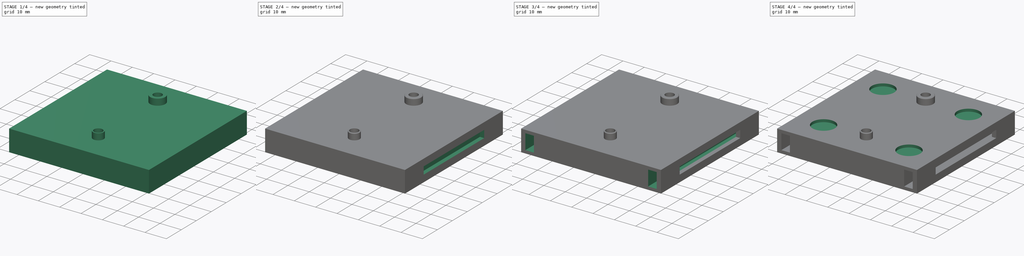
[diagram: build sequence overview — one tinted view per stage of 4, left to right]
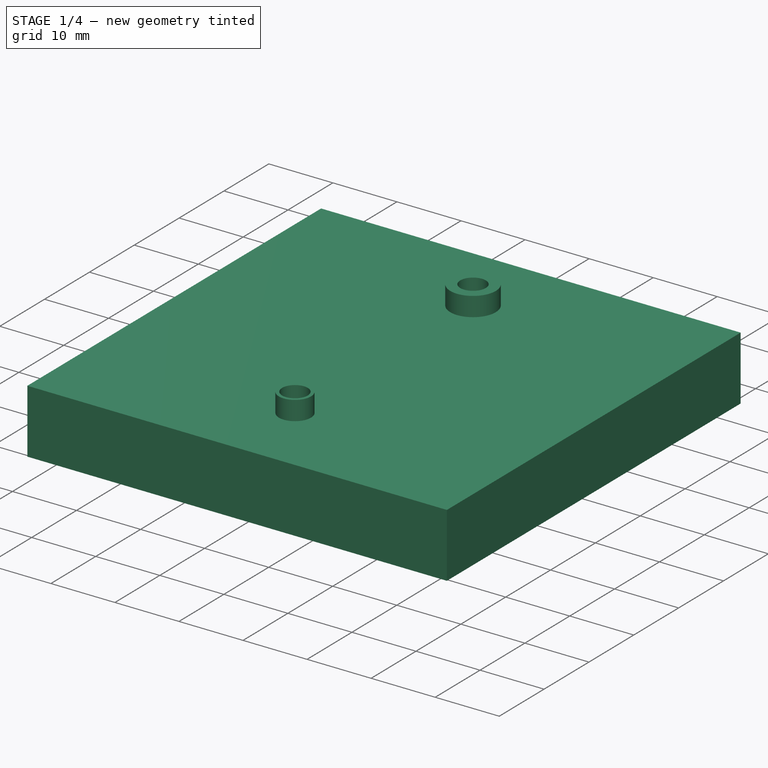
[diagram: stage 1 of 4 — iso view after this stage's code; geometry added in this stage tinted green]
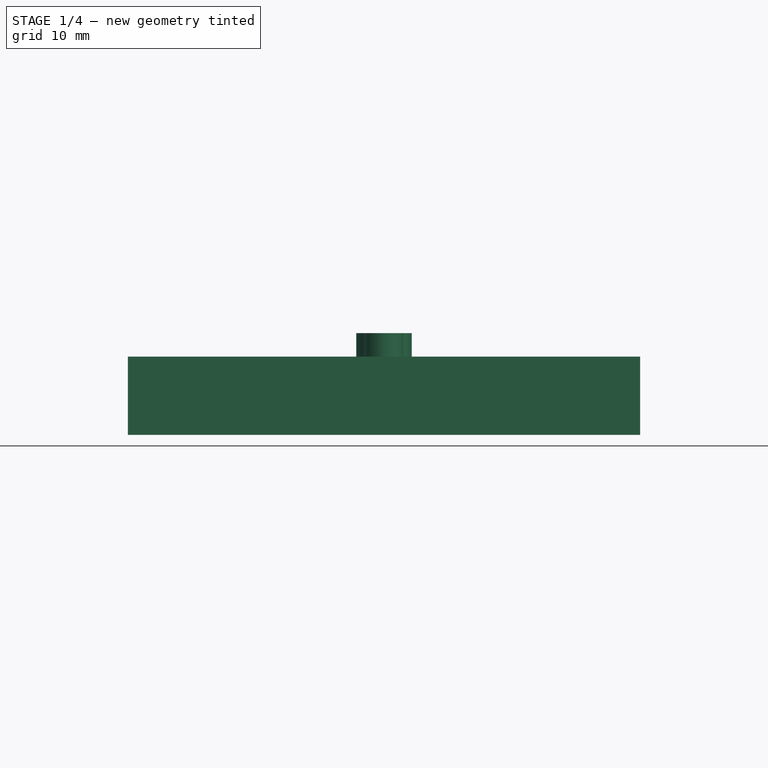
[diagram: stage 1 of 4 — front view after this stage's code; geometry added in this stage tinted green]
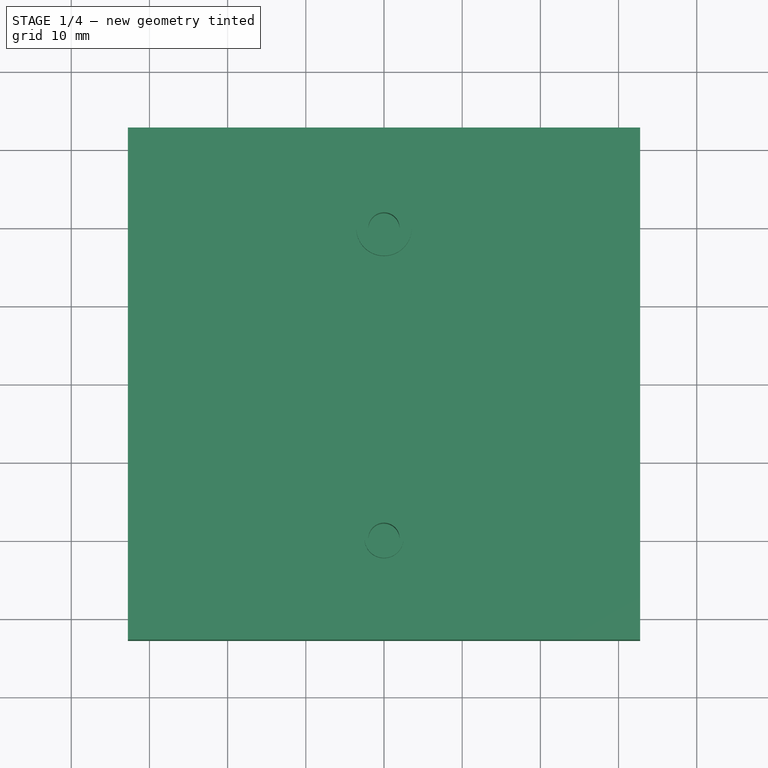
[diagram: stage 1 of 4 — top view after this stage's code; geometry added in this stage tinted green]
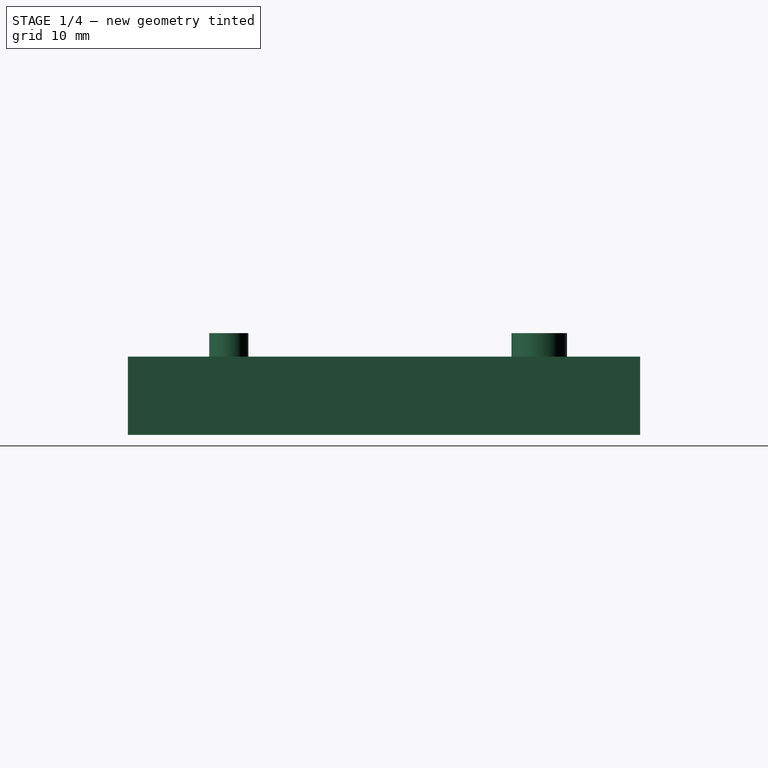
[diagram: stage 1 of 4 — right view after this stage's code; geometry added in this stage tinted green]
FCSTD DOCUMENT  (FreeCAD 0.20R29410 (Git))
Label: AdjBaseMountPlateRevD
License: All rights reserved
LicenseURL: http://en.wikipedia.org/wiki/All_rights_reserved
objects: Sketcher::SketchObject×10, PartDesign::Pocket×8, PartDesign::Plane×3, PartDesign::Pad×2, PartDesign::Chamfer×2, PartDesign::Body×1
note: 38 computed .brp shape members not serialized (recipe doc carries the construction recipe); baked Part::Feature solids carry a one-line shape summary decoded from their .brp

FEATURE [Sketcher::SketchObject] Sketch
  FullyConstrained = true
  MapMode = 5
  Support = -> [XY_Plane]
  sketch-geometry (4):
    g0: LineSegment StartX=-32.75 StartY=32.75 StartZ=0 EndX=32.75 EndY=32.75 EndZ=0
    g1: LineSegment StartX=32.75 StartY=32.75 StartZ=0 EndX=32.75 EndY=-32.75 EndZ=0
    g2: LineSegment StartX=32.75 StartY=-32.75 StartZ=0 EndX=-32.75 EndY=-32.75 EndZ=0
    g3: LineSegment StartX=-32.75 StartY=-32.75 StartZ=0 EndX=-32.75 EndY=32.75 EndZ=0
  constraints (11):
    c: Coincident(g0,g1)
    c: Coincident(g1,g2)
    c: Coincident(g2,g3)
    c: Coincident(g3,g0)
    c: Horizontal(g0)
    c: Horizontal(g2)
    c: Vertical(g1)
    c: Vertical(g3)
    c: Equal(g1,g0)
    c: DistanceX(g0,g0) = 65.5
    c: Symmetric(g1,g0,g-1)
FEATURE [PartDesign::Pad] Pad
  Direction = (0,0,1)
  Length = 10
  Length2 = 10
  Profile = -> Sketch
  ReferenceAxis = -> Sketch [N_Axis]
  Type = 0
FEATURE [Sketcher::SketchObject] Sketch001
  ExternalGeometry = -> [Pad]
  FullyConstrained = true
  MapMode = 5
  Placement = pos=(0,0,10) rot=(0,0,1;0rad)
  Support = -> [Pad]
  sketch-geometry (2):
    g0: Circle CenterX=0 CenterY=19.85 CenterZ=0 NormalX=0 NormalY=0 NormalZ=1 AngleXU=0 Radius=3.55
    g1: Circle CenterX=0 CenterY=-19.85 CenterZ=0 NormalX=0 NormalY=0 NormalZ=1 AngleXU=0 Radius=2.5
  constraints (6):
    c: PointOnObject(g0,g-2)
    c: PointOnObject(g1,g-2)
    c: DistanceY(g1,g-3) = 52.6
    c: DistanceY(g-3,g0) = -12.9
    c: Diameter(g0) = 7.1
    c: Diameter(g1) = 5
FEATURE [PartDesign::Pad] Pad001  label="PadMountsTwo"
  BaseFeature = -> Pad
  Direction = (0,0,1)
  Length = 3
  Length2 = 10
  Profile = -> Sketch001
  ReferenceAxis = -> Sketch001 [N_Axis]
  Type = 0
FEATURE [Sketcher::SketchObject] Sketch002
  ExternalGeometry = -> [Pad001]
  FullyConstrained = true
  MapMode = 5
  Placement = pos=(0,0,13) rot=(0,0,1;0rad)
  Support = -> [Pad001]
  sketch-geometry (2):
    g0: Circle CenterX=0 CenterY=19.85 CenterZ=0 NormalX=0 NormalY=0 NormalZ=1 AngleXU=0 Radius=2
    g1: Circle CenterX=0 CenterY=-19.85 CenterZ=0 NormalX=0 NormalY=0 NormalZ=1 AngleXU=0 Radius=2
  constraints (4):
    c: Coincident(g0,g-3)
    c: Coincident(g1,g-4)
    c: Equal(g0,g1)
    c: Diameter(g0) = 4
FEATURE [PartDesign::Pocket] Pocket  label="4mmTwoCenterBoltHoles"
  BaseFeature = -> Pad001
  Direction = (0,0,-1)
  Length = 8
  Length2 = 5
  Profile = -> Sketch002
  ReferenceAxis = -> Sketch002 [N_Axis]
  Type = 0
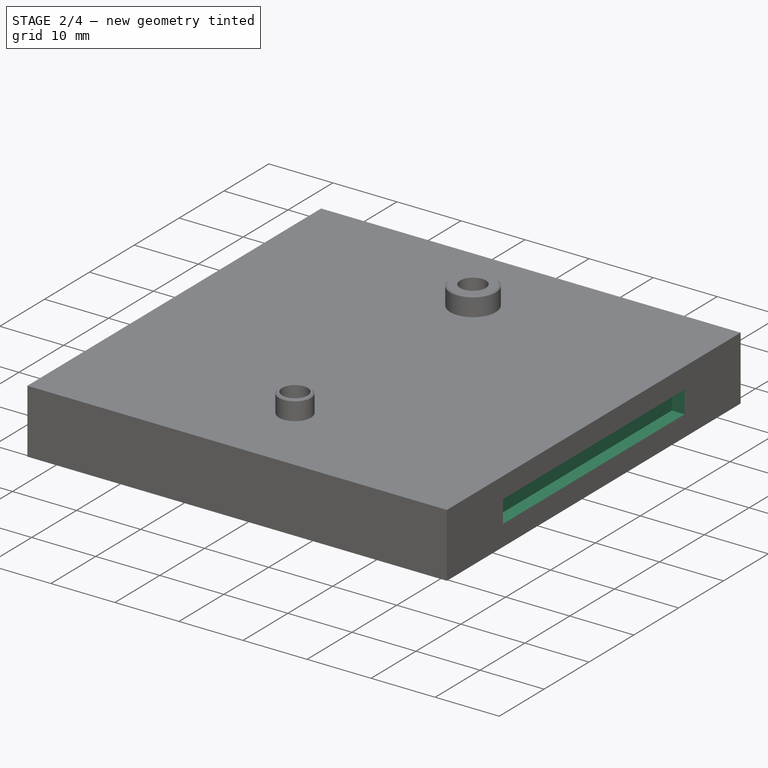
[diagram: stage 2 of 4 — iso view after this stage's code; geometry added in this stage tinted green]
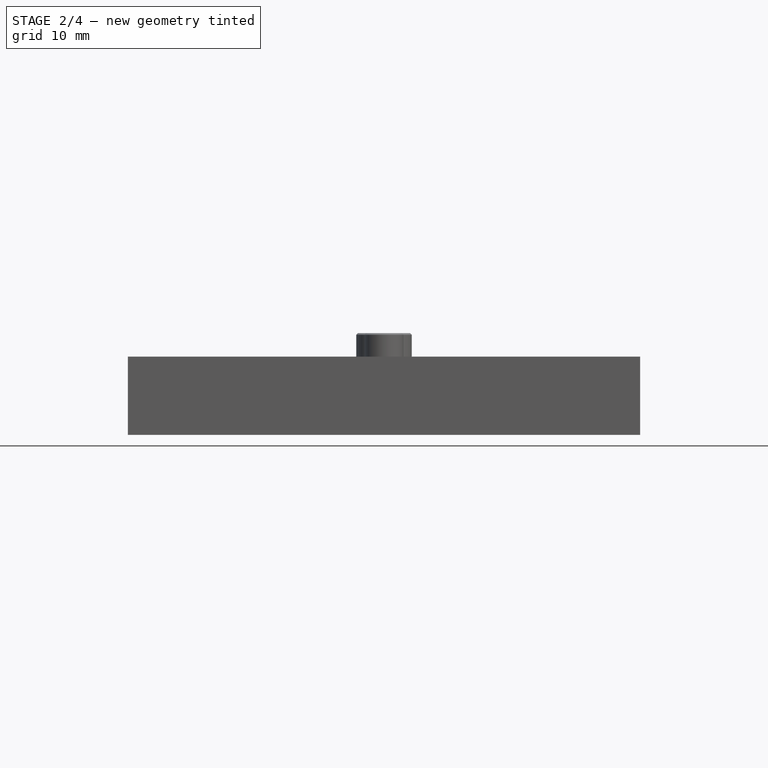
[diagram: stage 2 of 4 — front view after this stage's code; geometry added in this stage tinted green]
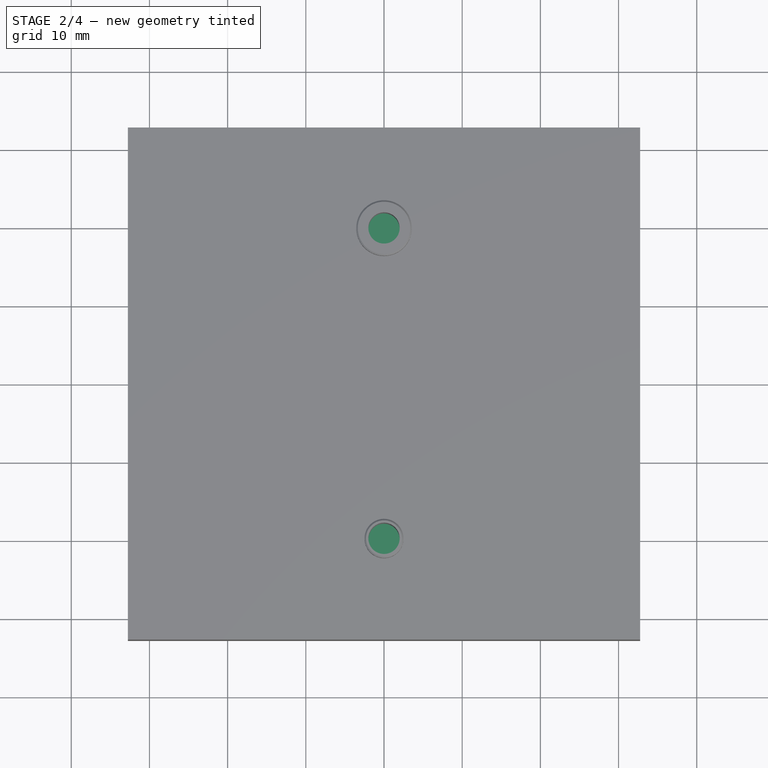
[diagram: stage 2 of 4 — top view after this stage's code; geometry added in this stage tinted green]
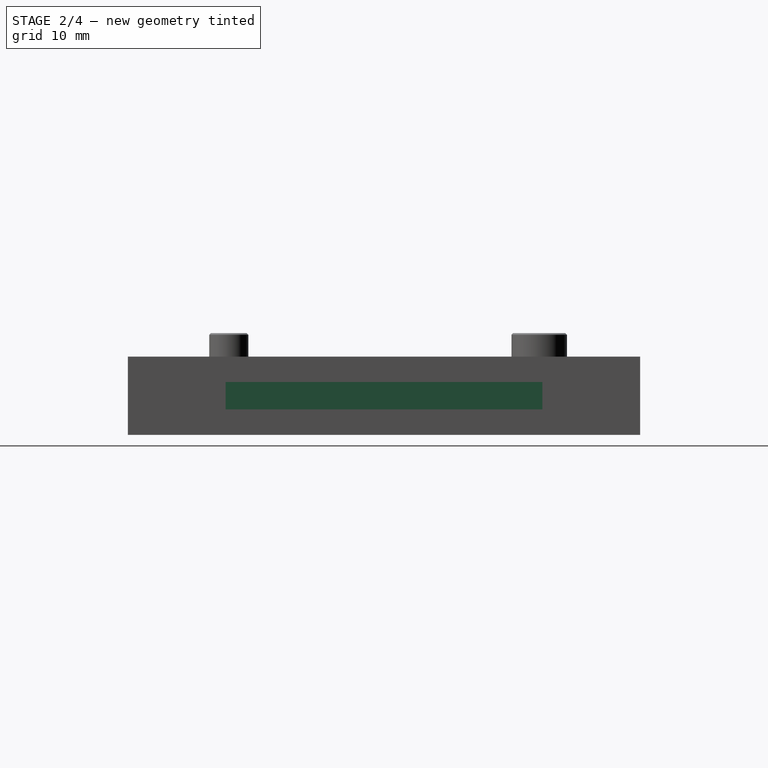
[diagram: stage 2 of 4 — right view after this stage's code; geometry added in this stage tinted green]
FEATURE [PartDesign::Chamfer] Chamfer
  Angle = 45
  Base = -> Pocket [Edge18,Edge16]
  BaseFeature = -> Pocket
  ChamferType = 0
  FlipDirection = false
  Size = 0.2
  Size2 = 1
  SupportTransform = false
  UseAllEdges = false
FEATURE [PartDesign::Plane] DatumPlane
  AttachmentOffset = pos=(0,0,-5) rot=(0,0,1;0rad)
  Length = 78.6
  MapMode = 5
  Placement = pos=(0,0,5) rot=(0,0,1;0rad)
  ResizeMode = 0
  Support = -> [Chamfer]
  Width = 78.6
FEATURE [Sketcher::SketchObject] Sketch003  label="NutDia8.43"
  ExternalGeometry = -> [Chamfer]
  FullyConstrained = true
  MapMode = 5
  Placement = pos=(0,0,5) rot=(0,0,1;0rad)
  Support = -> [DatumPlane]
  sketch-geometry (14):
    g0: LineSegment StartX=-3.6503 StartY=17.7425 StartZ=0 EndX=0 EndY=15.635 EndZ=0
    g1: LineSegment StartX=0 StartY=15.635 StartZ=0 EndX=3.6503 EndY=17.7425 EndZ=0
    g2: LineSegment StartX=3.6503 StartY=17.7425 StartZ=0 EndX=3.6503 EndY=21.9575 EndZ=0
    g3: LineSegment StartX=3.6503 StartY=21.9575 StartZ=0 EndX=1.94849e-11 EndY=24.065 EndZ=0
    g4: LineSegment StartX=1.94849e-11 StartY=24.065 StartZ=0 EndX=-3.6503 EndY=21.9575 EndZ=0
    g5: LineSegment StartX=-3.6503 StartY=21.9575 StartZ=0 EndX=-3.6503 EndY=17.7425 EndZ=0
    g6: Circle CenterX=0 CenterY=19.85 CenterZ=0 NormalX=0 NormalY=0 NormalZ=1 AngleXU=0 Radius=4.215
    g7: LineSegment StartX=-3.6503 StartY=-21.9575 StartZ=0 EndX=0 EndY=-24.065 EndZ=0
    g8: LineSegment StartX=0 StartY=-24.065 StartZ=0 EndX=3.6503 EndY=-21.9575 EndZ=0
    g9: LineSegment StartX=3.6503 StartY=-21.9575 StartZ=0 EndX=3.6503 EndY=-17.7425 EndZ=0
    g10: LineSegment StartX=3.6503 StartY=-17.7425 StartZ=0 EndX=1.94857e-11 EndY=-15.635 EndZ=0
    g11: LineSegment StartX=1.94857e-11 StartY=-15.635 StartZ=0 EndX=-3.6503 EndY=-17.7425 EndZ=0
    g12: LineSegment StartX=-3.6503 StartY=-17.7425 StartZ=0 EndX=-3.6503 EndY=-21.9575 EndZ=0
    g13: Circle CenterX=0 CenterY=-19.85 CenterZ=0 NormalX=0 NormalY=0 NormalZ=1 AngleXU=0 Radius=4.215
  constraints (32):
    c: Coincident(g0,g1)
    c: Coincident(g1,g2)
    c: Coincident(g2,g3)
    c: Coincident(g3,g4)
    c: Coincident(g4,g5)
    c: Coincident(g5,g0)
    c: Equal(g0, g1-g5) x5
    c: PointOnObject(g0,g6)
    c: PointOnObject(g1,g6)
    c: PointOnObject(g2,g6)
    c: PointOnObject(g3,g6)
    c: PointOnObject(g4,g6)
    c: PointOnObject(g5,g6)
    c: Coincident(g6,g-3)
    c: Coincident(g7,g8)
    c: Coincident(g8,g9)
    c: Coincident(g9,g10)
    c: Coincident(g10,g11)
    c: Coincident(g11,g12)
    c: Coincident(g12,g7)
    c: Equal(g7, g8-g12) x5
    c: PointOnObject(g7,g13)
    c: PointOnObject(g8,g13)
    c: PointOnObject(g9,g13)
    c: PointOnObject(g10,g13)
    c: PointOnObject(g11,g13)
    c: PointOnObject(g12,g13)
    c: Coincident(g13,g-4)
    c: Vertical(g7,g13)
    c: Vertical(g0,g6)
    c: Equal(g6,g13)
    c: Diameter(g6) = 8.43
FEATURE [PartDesign::Pocket] Pocket001  label="NutHoles2.5"
  BaseFeature = -> Chamfer
  Direction = (0,0,-1)
  Length = 2.5
  Length2 = 5
  Profile = -> Sketch003
  ReferenceAxis = -> Sketch003 [N_Axis]
  Type = 0
FEATURE [Sketcher::SketchObject] Sketch004
  FullyConstrained = true
  MapMode = 5
  Placement = pos=(32.75,0,0) rot=(0.57735,0.57735,0.57735;2.0944rad)
  Support = -> [Pocket001]
  sketch-geometry (4):
    g0: LineSegment StartX=-20.25 StartY=6.75 StartZ=0 EndX=20.25 EndY=6.75 EndZ=0
    g1: LineSegment StartX=20.25 StartY=6.75 StartZ=0 EndX=20.25 EndY=3.25 EndZ=0
    g2: LineSegment StartX=20.25 StartY=3.25 StartZ=0 EndX=-20.25 EndY=3.25 EndZ=0
    g3: LineSegment StartX=-20.25 StartY=3.25 StartZ=0 EndX=-20.25 EndY=6.75 EndZ=0
  constraints (11):
    c: Coincident(g0,g1)
    c: Coincident(g1,g2)
    c: Coincident(g2,g3)
    c: Coincident(g3,g0)
    c: Horizontal(g0)
    c: Vertical(g1)
    c: Vertical(g3)
    c: DistanceX(g0,g0) = 40.5
    c: DistanceY(g1,g1) = 3.5
    c: Symmetric(g1,g2,g-2)
    c: DistanceY(g-1,g1) = 3.25
FEATURE [PartDesign::Pocket] Pocket002  label="RightSideAccess"
  BaseFeature = -> Pocket001
  Direction = (-1,0,0)
  Length = 2
  Length2 = 5
  Profile = -> Sketch004
  ReferenceAxis = -> Sketch004 [N_Axis]
  Type = 0
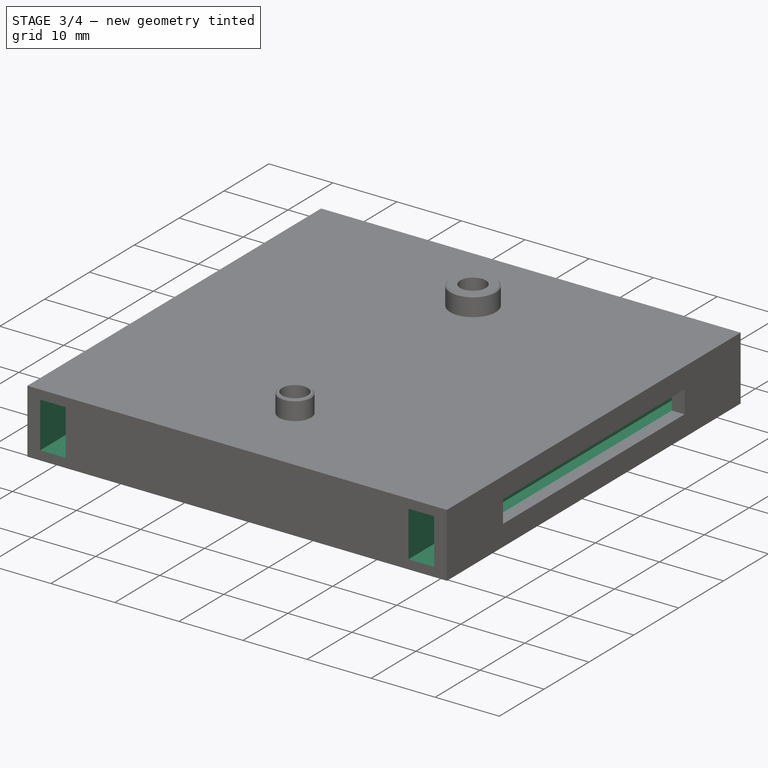
[diagram: stage 3 of 4 — iso view after this stage's code; geometry added in this stage tinted green]
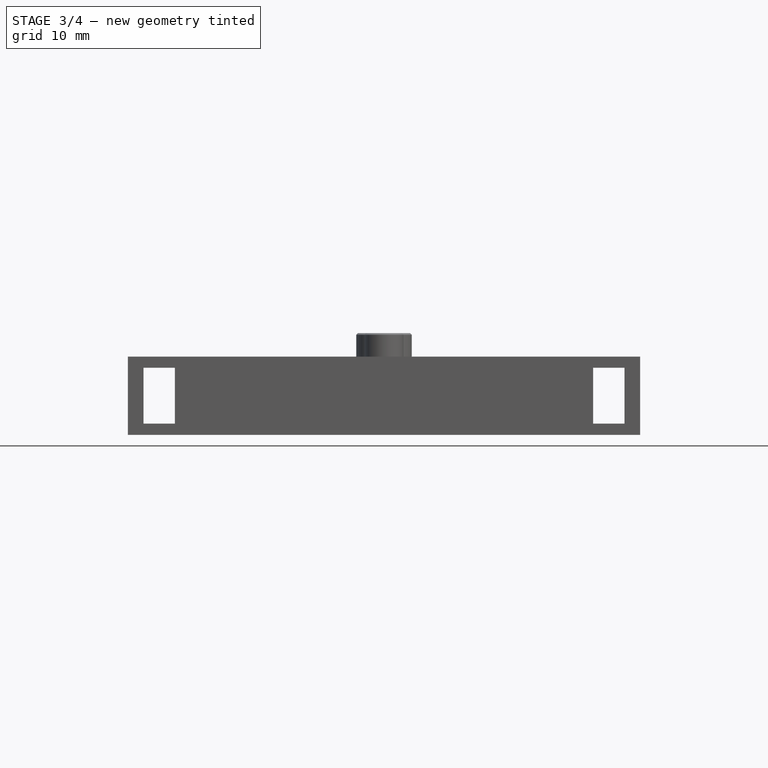
[diagram: stage 3 of 4 — front view after this stage's code; geometry added in this stage tinted green]
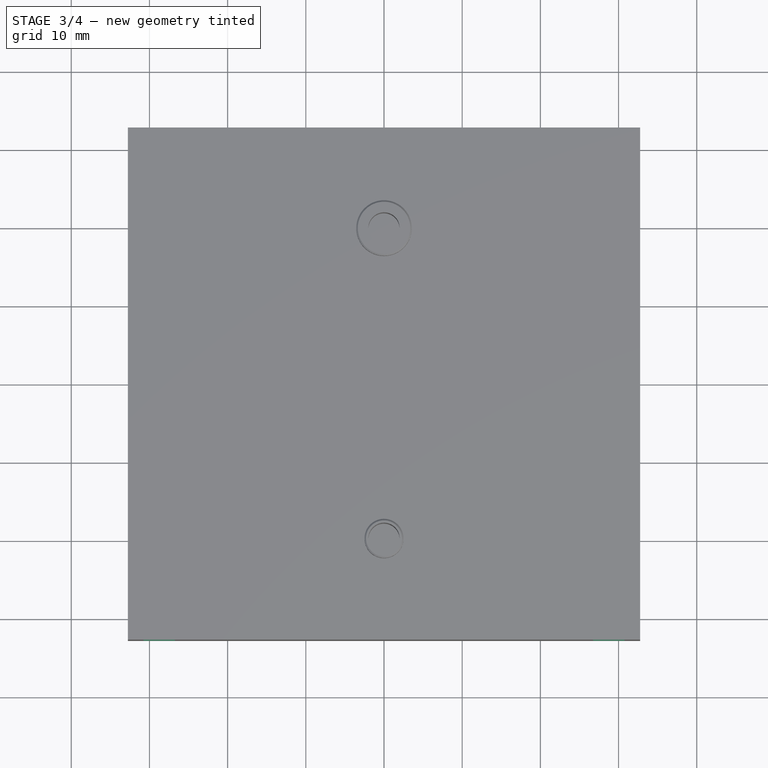
[diagram: stage 3 of 4 — top view after this stage's code; geometry added in this stage tinted green]
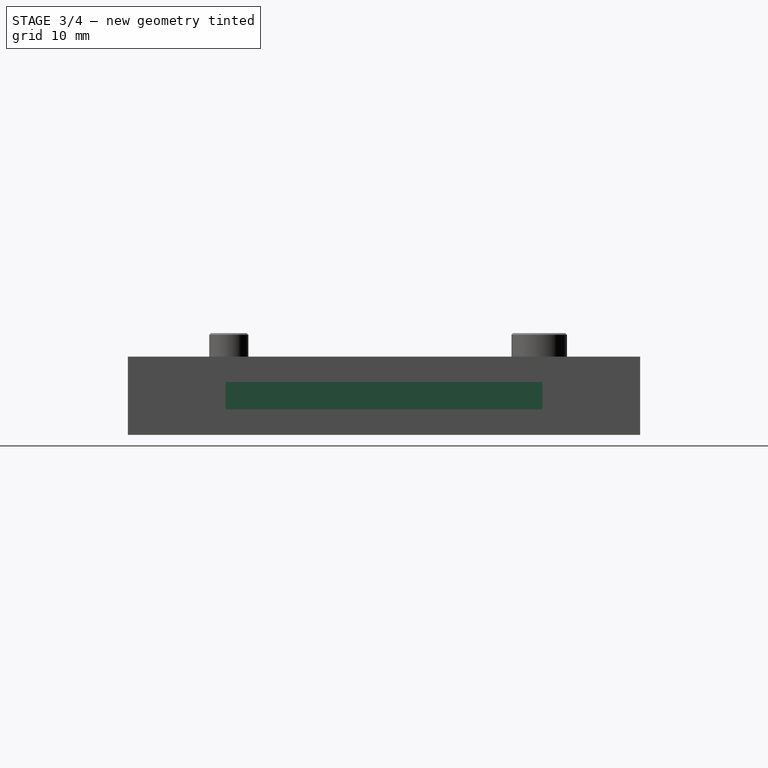
[diagram: stage 3 of 4 — right view after this stage's code; geometry added in this stage tinted green]
FEATURE [Sketcher::SketchObject] Sketch005
  ExternalGeometry = -> [Pocket002]
  FullyConstrained = true
  MapMode = 5
  Placement = pos=(-32.75,0,0) rot=(0.57735,-0.57735,-0.57735;2.0944rad)
  Support = -> [Pocket002]
  sketch-geometry (4):
    g0: LineSegment StartX=-20.25 StartY=6.75 StartZ=0 EndX=20.25 EndY=6.75 EndZ=0
    g1: LineSegment StartX=20.25 StartY=6.75 StartZ=0 EndX=20.25 EndY=3.25 EndZ=0
    g2: LineSegment StartX=20.25 StartY=3.25 StartZ=0 EndX=-20.25 EndY=3.25 EndZ=0
    g3: LineSegment StartX=-20.25 StartY=3.25 StartZ=0 EndX=-20.25 EndY=6.75 EndZ=0
  constraints (12):
    c: Coincident(g0,g1)
    c: Coincident(g1,g2)
    c: Coincident(g2,g3)
    c: Coincident(g3,g0)
    c: Horizontal(g0)
    c: Vertical(g1)
    c: Vertical(g3)
    c: DistanceX(g0,g0) = 40.5
    c: DistanceY(g-1,g1) = 3.25
    c: DistanceY(g3,g3) = 3.5
    c: Symmetric(g2,g1,g-2)
    c: DistanceY(g0,g-3) = 3.25
FEATURE [PartDesign::Pocket] Pocket003  label="LeftSideAccess"
  BaseFeature = -> Pocket002
  Direction = (1,0,0)
  Length = 2
  Length2 = 5
  Profile = -> Sketch005
  ReferenceAxis = -> Sketch005 [N_Axis]
  Type = 0
FEATURE [PartDesign::Plane] DatumPlane001  label="DatumPlaneLeftSide"
  AttachmentOffset = pos=(0,0,-2) rot=(0,0,1;0rad)
  Length = 76.9455
  MapMode = 5
  Placement = pos=(-30.75,0,0) rot=(0.57735,-0.57735,-0.57735;2.0944rad)
  ResizeMode = 0
  Support = -> [Pocket003]
  Width = 61.4455
FEATURE [PartDesign::Plane] DatumPlane002  label="DatumPlaneRightSide"
  AttachmentOffset = pos=(0,0,-2) rot=(0,0,1;0rad)
  Length = 76.9455
  MapMode = 5
  Placement = pos=(30.75,0,0) rot=(0.57735,0.57735,0.57735;2.0944rad)
  ResizeMode = 0
  Support = -> [Pocket003]
  Width = 61.4455
FEATURE [Sketcher::SketchObject] Sketch006
  ExternalGeometry = -> [Pocket003]
  FullyConstrained = true
  MapMode = 5
  Placement = pos=(30.75,0,0) rot=(0.57735,0.57735,0.57735;2.0944rad)
  Support = -> [DatumPlane002]
  sketch-geometry (4):
    g0: LineSegment StartX=-32.75 StartY=8.575 StartZ=0 EndX=32.75 EndY=8.575 EndZ=0
    g1: LineSegment StartX=32.75 StartY=8.575 StartZ=0 EndX=32.75 EndY=1.425 EndZ=0
    g2: LineSegment StartX=32.75 StartY=1.425 StartZ=0 EndX=-32.75 EndY=1.425 EndZ=0
    g3: LineSegment StartX=-32.75 StartY=1.425 StartZ=0 EndX=-32.75 EndY=8.575 EndZ=0
  constraints (12):
    c: Coincident(g0,g1)
    c: Coincident(g1,g2)
    c: Coincident(g2,g3)
    c: Coincident(g3,g0)
    c: Horizontal(g0)
    c: Horizontal(g2)
    c: Vertical(g1)
    c: Vertical(g3)
    c: PointOnObject(g0,g-3)
    c: PointOnObject(g1,g-4)
    c: DistanceY(g1,g1) = 7.15
    c: DistanceY(g-4,g1) = 1.425
FEATURE [PartDesign::Pocket] Pocket004  label="4mmSlotRightSide"
  BaseFeature = -> Pocket003
  Direction = (-1,0,0)
  Length = 4
  Length2 = 5
  Profile = -> Sketch006
  ReferenceAxis = -> Sketch006 [N_Axis]
  Type = 0
FEATURE [Sketcher::SketchObject] Sketch007
  ExternalGeometry = -> [Pocket004]
  FullyConstrained = true
  MapMode = 5
  Placement = pos=(-30.75,0,0) rot=(0.57735,-0.57735,-0.57735;2.0944rad)
  Support = -> [DatumPlane001]
  sketch-geometry (4):
    g0: LineSegment StartX=-32.75 StartY=8.575 StartZ=0 EndX=32.75 EndY=8.575 EndZ=0
    g1: LineSegment StartX=32.75 StartY=8.575 StartZ=0 EndX=32.75 EndY=1.425 EndZ=0
    g2: LineSegment StartX=32.75 StartY=1.425 StartZ=0 EndX=-32.75 EndY=1.425 EndZ=0
    g3: LineSegment StartX=-32.75 StartY=1.425 StartZ=0 EndX=-32.75 EndY=8.575 EndZ=0
  constraints (15):
    c: Coincident(g0,g1)
    c: Coincident(g1,g2)
    c: Coincident(g2,g3)
    c: Coincident(g3,g0)
    c: Horizontal(g0)
    c: Horizontal(g2)
    c: Vertical(g1)
    c: Vertical(g3)
    c: PointOnObject(g0,g-3)
    c: PointOnObject(g1,g-4)
    c: DistanceY(g3,g3) = 7.15
    c: DistanceY(g-3,g2) = 1.425
    c: DistanceY(g0,g-3) = 1.425
    c: DistanceY(g-5,g-5) = 3.5
    c: DistanceY(g-3,g-5) = 3.25
FEATURE [PartDesign::Pocket] Pocket005  label="4mmSlotLeftSide"
  BaseFeature = -> Pocket004
  Direction = (1,0,0)
  Length = 4
  Length2 = 5
  Profile = -> Sketch007
  ReferenceAxis = -> Sketch007 [N_Axis]
  Type = 0
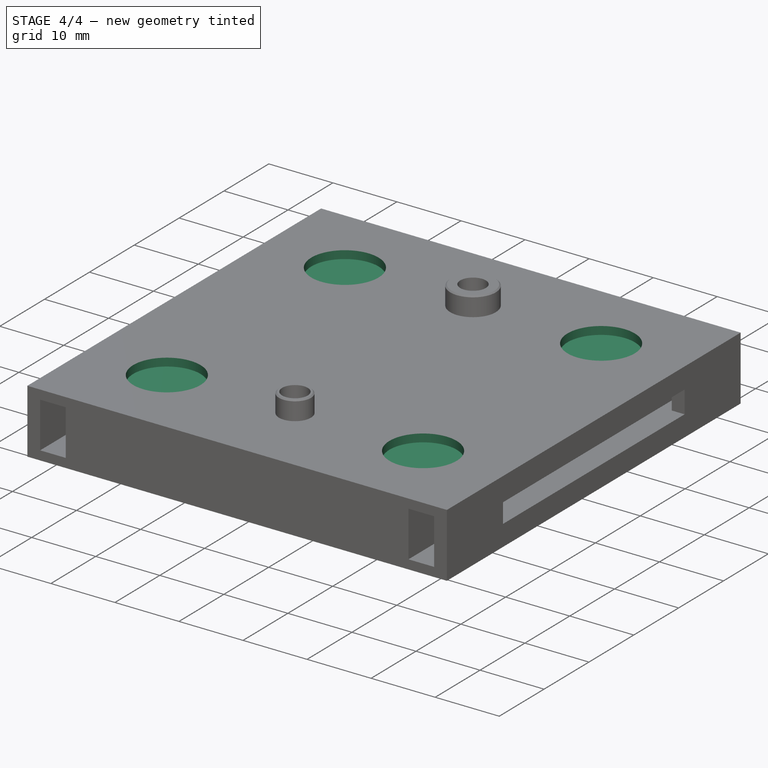
[diagram: stage 4 of 4 — iso view after this stage's code; geometry added in this stage tinted green]
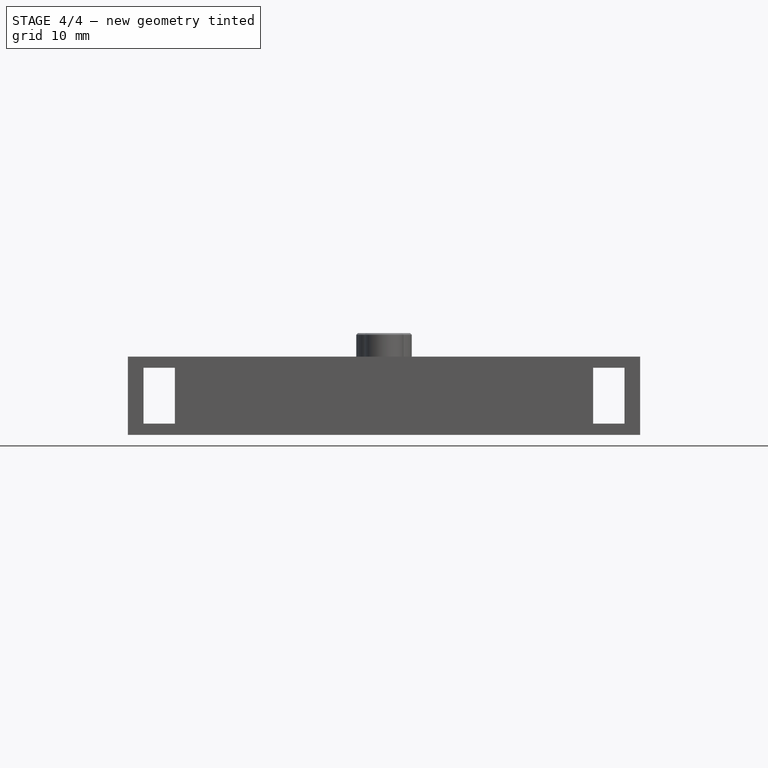
[diagram: stage 4 of 4 — front view after this stage's code; geometry added in this stage tinted green]
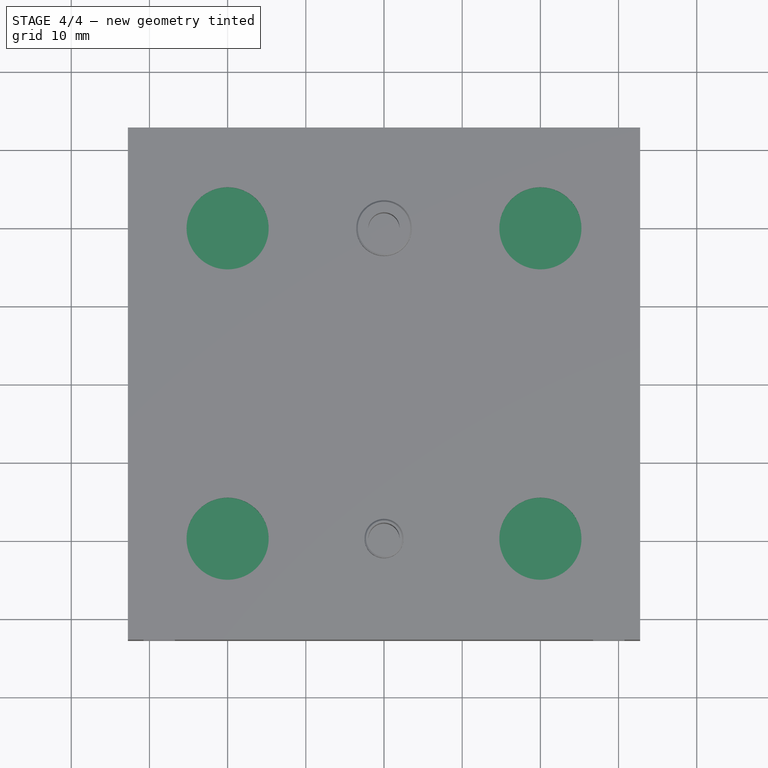
[diagram: stage 4 of 4 — top view after this stage's code; geometry added in this stage tinted green]
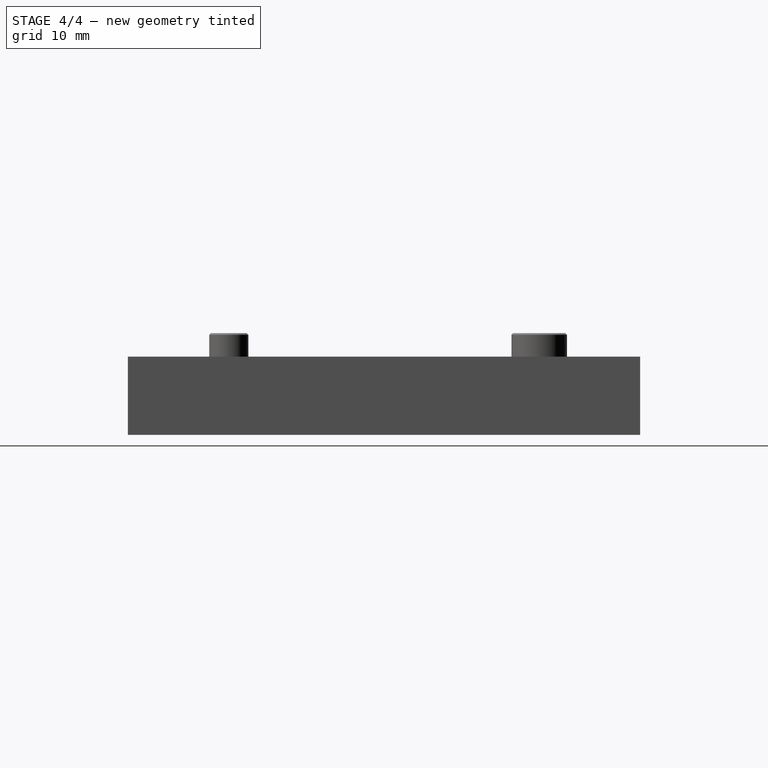
[diagram: stage 4 of 4 — right view after this stage's code; geometry added in this stage tinted green]
FEATURE [Sketcher::SketchObject] Sketch008
  FullyConstrained = true
  MapMode = 5
  Placement = pos=(0,0,0) rot=(1,0,0;3.14159rad)
  Support = -> [Pocket005]
  sketch-geometry (4):
    g0: Circle CenterX=-25 CenterY=25 CenterZ=0 NormalX=0 NormalY=0 NormalZ=1 AngleXU=0 Radius=0.925
    g1: Circle CenterX=25 CenterY=25 CenterZ=0 NormalX=0 NormalY=0 NormalZ=1 AngleXU=0 Radius=0.925
    g2: Circle CenterX=-25 CenterY=-25 CenterZ=0 NormalX=0 NormalY=0 NormalZ=1 AngleXU=0 Radius=0.925
    g3: Circle CenterX=25 CenterY=-25 CenterZ=0 NormalX=0 NormalY=0 NormalZ=1 AngleXU=0 Radius=0.925
  constraints (9):
    c: Equal(g0,g1)
    c: Equal(g1,g3)
    c: Equal(g3,g2)
    c: Symmetric(g0,g1,g-2)
    c: Symmetric(g2,g3,g-2)
    c: Symmetric(g0,g3,g-1)
    c: DistanceX(g-1,g1) = 25
    c: DistanceY(g-1,g1) = 25
    c: Diameter(g0) = 1.85
FEATURE [PartDesign::Pocket] Pocket006
  BaseFeature = -> Pocket005
  Direction = (0,0,1)
  Length = 2.15
  Length2 = 5
  Profile = -> Sketch008
  ReferenceAxis = -> Sketch008 [N_Axis]
  Type = 0
FEATURE [PartDesign::Chamfer] Chamfer001
  Angle = 45
  Base = -> Pocket006 [Edge48,Edge49,Edge50,Edge51]
  BaseFeature = -> Pocket006
  ChamferType = 1
  FlipDirection = false
  Size = 1
  Size2 = 0.25
  SupportTransform = false
  UseAllEdges = false
FEATURE [Sketcher::SketchObject] Sketch009
  ExternalGeometry = -> [Chamfer001]
  FullyConstrained = true
  MapMode = 5
  Placement = pos=(0,0,10) rot=(0,0,1;0rad)
  Support = -> [Chamfer001]
  sketch-geometry (4):
    g0: Circle CenterX=-20 CenterY=19.85 CenterZ=0 NormalX=0 NormalY=0 NormalZ=1 AngleXU=0 Radius=5.25
    g1: Circle CenterX=20 CenterY=19.85 CenterZ=0 NormalX=0 NormalY=0 NormalZ=1 AngleXU=0 Radius=5.25
    g2: Circle CenterX=20 CenterY=-19.85 CenterZ=0 NormalX=0 NormalY=0 NormalZ=1 AngleXU=0 Radius=5.25
    g3: Circle CenterX=-20 CenterY=-19.85 CenterZ=0 NormalX=0 NormalY=0 NormalZ=1 AngleXU=0 Radius=5.25
  constraints (11):
    c: Horizontal(g3,g-4)
    c: Horizontal(g0,g1)
    c: Horizontal(g1,g-3)
    c: Equal(g0,g3)
    c: Equal(g3,g1)
    c: Equal(g1,g2)
    c: DistanceX(g0,g1) = 40
    c: Diameter(g1) = 10.5
    c: Vertical(g3,g0)
    c: Vertical(g2,g1)
    c: Symmetric(g3,g2,g-2)
FEATURE [PartDesign::Pocket] Pocket007
  BaseFeature = -> Chamfer001
  Direction = (0,0,-1)
  Length = 1.25
  Length2 = 5
  Profile = -> Sketch009
  ReferenceAxis = -> Sketch009 [N_Axis]
  Type = 0
FEATURE [PartDesign::Body] Body
  Group = -> [Sketch,Pad,Sketch001,Pad001,Sketch002,Pocket,Chamfer,DatumPlane,Sketch003,Pocket001,Sketch004,Pocket002,Sketch005,Pocket003,DatumPlane001,DatumPlane002,Sketch006,Pocket004,Sketch007,Pocket005,Sketch008,Pocket006,Chamfer001,Sketch009,Pocket007]
  Origin = -> Origin
  Tip = -> Pocket007
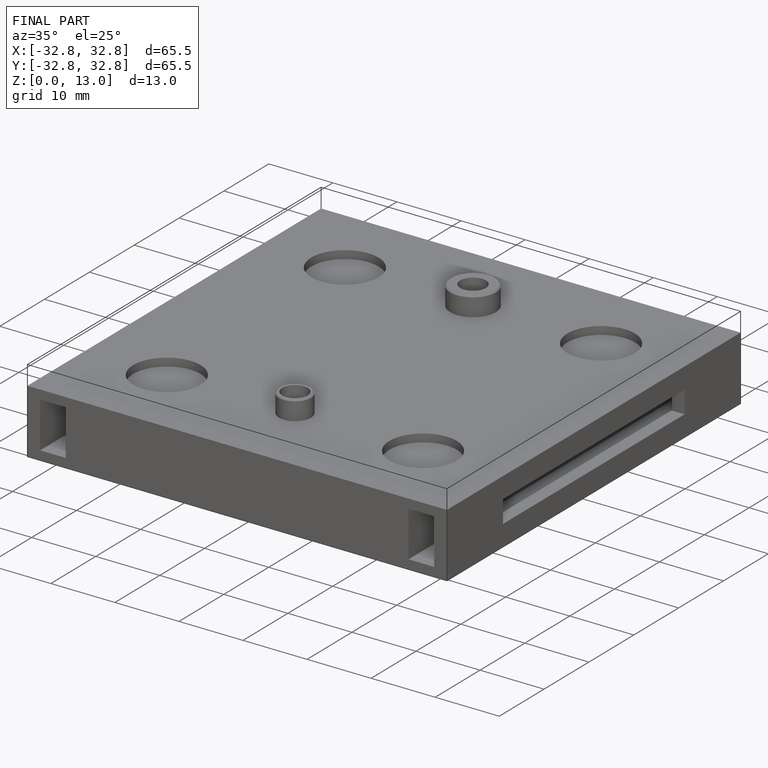
[diagram: finished part — iso view with bounding-box wireframe]
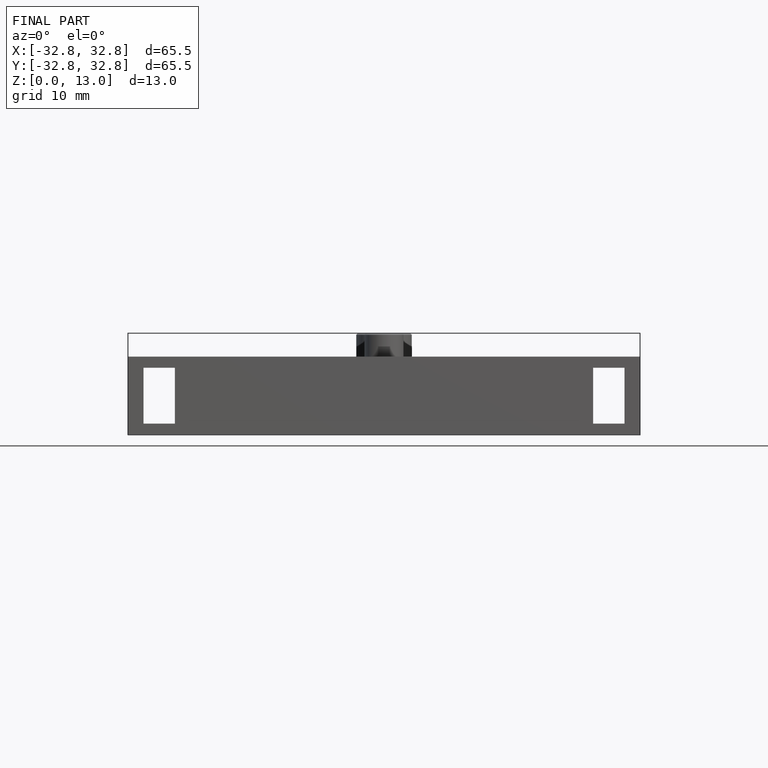
[diagram: finished part — front view with bounding-box wireframe]
